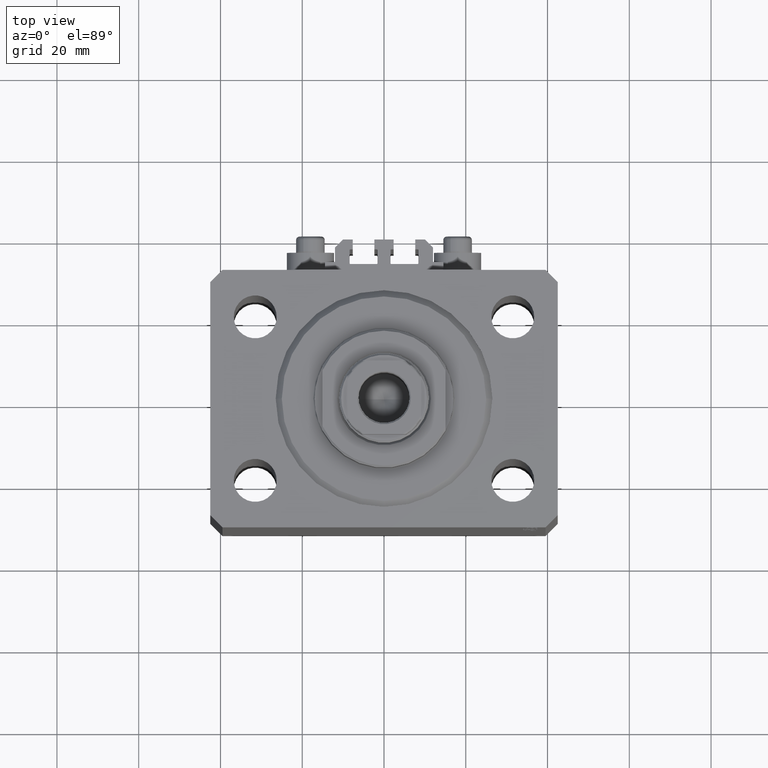
[diagram: clean part render]
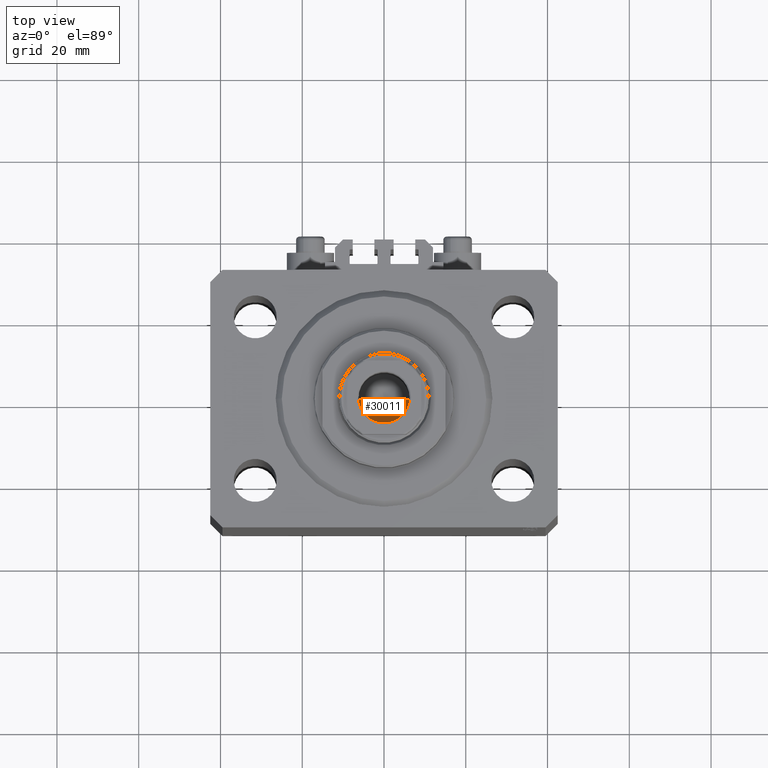
[diagram: same view with one face highlighted and labeled with its STEP entity id]
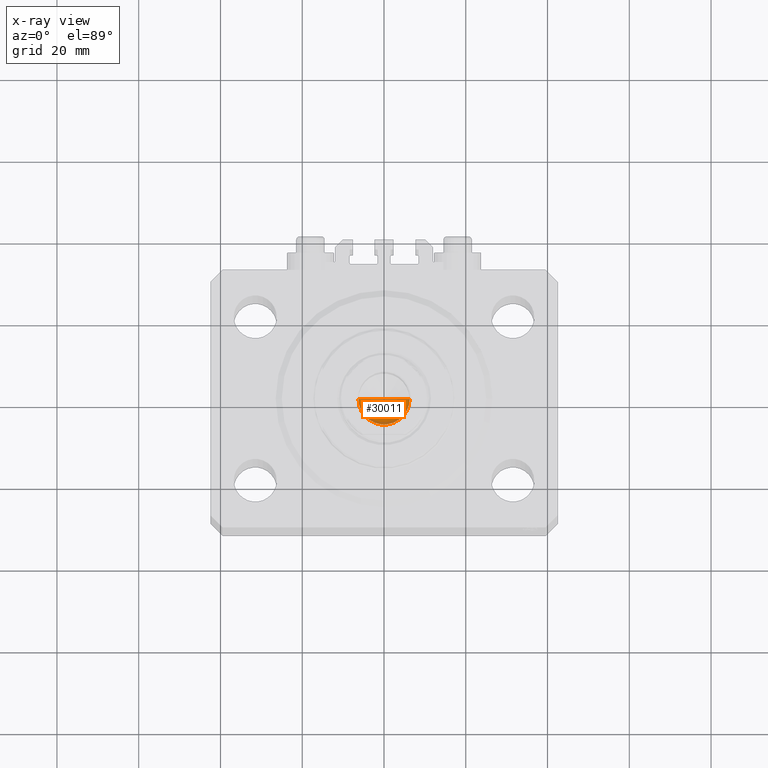
[diagram: x-ray of the same camera — body ghosted, the highlighted face saturated]
A machine part, top view. The second image highlights one B-rep face of the part: STEP entity #30011.
The next image is the same camera in x-ray: the body ghosted, the highlighted face saturated — about 9% of this face is hidden behind the body in this view.
In plain terms, the highlighted conical surface has half-angle 59 deg.
Its self-contained STEP definition (entity closure, byte-faithful):
#733 = VERTEX_POINT ( 'NONE', #45631 ) ;
#739 = CARTESIAN_POINT ( 'NONE',  ( 6.249999999999993783, 0.000000000000000000, 103.5999999999999943 ) ) ;
#1211 = CARTESIAN_POINT ( 'NONE',  ( -7.434177670704979810E-15, 0.000000000000000000, 99.84462113107774428 ) ) ;
#1684 = FACE_OUTER_BOUND ( 'NONE', #12654, .T. ) ;
#2325 = CARTESIAN_POINT ( 'NONE',  ( 0.000000000000000000, 0.000000000000000000, 103.5999999999999943 ) ) ;
#3111 = EDGE_CURVE ( 'NONE', #38034, #30366, #13636, .T. ) ;
#5997 = CARTESIAN_POINT ( 'NONE',  ( 0.000000000000000000, 0.000000000000000000, 103.5999999999999943 ) ) ;
#7416 = ORIENTED_EDGE ( 'NONE', *, *, #14392, .T. ) ;
#7873 = AXIS2_PLACEMENT_3D ( 'NONE', #2325, #46354, #46115 ) ;
#8159 = DIRECTION ( 'NONE',  ( 0.8571673007021115565, 0.000000000000000000, 0.5150380749100554878 ) ) ;
#9074 = EDGE_CURVE ( 'NONE', #38034, #733, #26329, .T. ) ;
#9953 = ORIENTED_EDGE ( 'NONE', *, *, #3111, .T. ) ;
#12654 = EDGE_LOOP ( 'NONE', ( #39321, #9953, #7416 ) ) ;
#13636 = LINE ( 'NONE', #17925, #14225 ) ;
#14225 = VECTOR ( 'NONE', #47152, 1000.000000000000000 ) ;
#14392 = EDGE_CURVE ( 'NONE', #30366, #733, #43780, .T. ) ;
#15742 = CARTESIAN_POINT ( 'NONE',  ( -6.249999999999993783, 7.654042494670949718E-16, 103.5999999999999943 ) ) ;
#17925 = CARTESIAN_POINT ( 'NONE',  ( -6.249999999999993783, 7.654042494670949718E-16, 103.5999999999999943 ) ) ;
#26329 = LINE ( 'NONE', #739, #32679 ) ;
#27026 = CONICAL_SURFACE ( 'NONE', #35422, 6.249999999999993783, 1.029744258676652979 ) ;
#27515 = DIRECTION ( 'NONE',  ( 1.000000000000000000, 0.000000000000000000, 0.000000000000000000 ) ) ;
#30011 = ADVANCED_FACE ( 'NONE', ( #1684 ), #27026, .F. ) ;
#30366 = VERTEX_POINT ( 'NONE', #15742 ) ;
#32679 = VECTOR ( 'NONE', #8159, 1000.000000000000000 ) ;
#34689 = DIRECTION ( 'NONE',  ( -0.000000000000000000, -0.000000000000000000, 1.000000000000000000 ) ) ;
#35422 = AXIS2_PLACEMENT_3D ( 'NONE', #5997, #34689, #27515 ) ;
#38034 = VERTEX_POINT ( 'NONE', #1211 ) ;
#39321 = ORIENTED_EDGE ( 'NONE', *, *, #9074, .F. ) ;
#43780 = CIRCLE ( 'NONE', #7873, 6.249999999999993783 ) ;
#45631 = CARTESIAN_POINT ( 'NONE',  ( 6.249999999999993783, 0.000000000000000000, 103.5999999999999943 ) ) ;
#46115 = DIRECTION ( 'NONE',  ( 1.000000000000000000, 0.000000000000000000, 0.000000000000000000 ) ) ;
#46354 = DIRECTION ( 'NONE',  ( -0.000000000000000000, -0.000000000000000000, 1.000000000000000000 ) ) ;
#47152 = DIRECTION ( 'NONE',  ( -0.8571673007021115565, 1.049727191138617710E-16, 0.5150380749100554878 ) ) ;